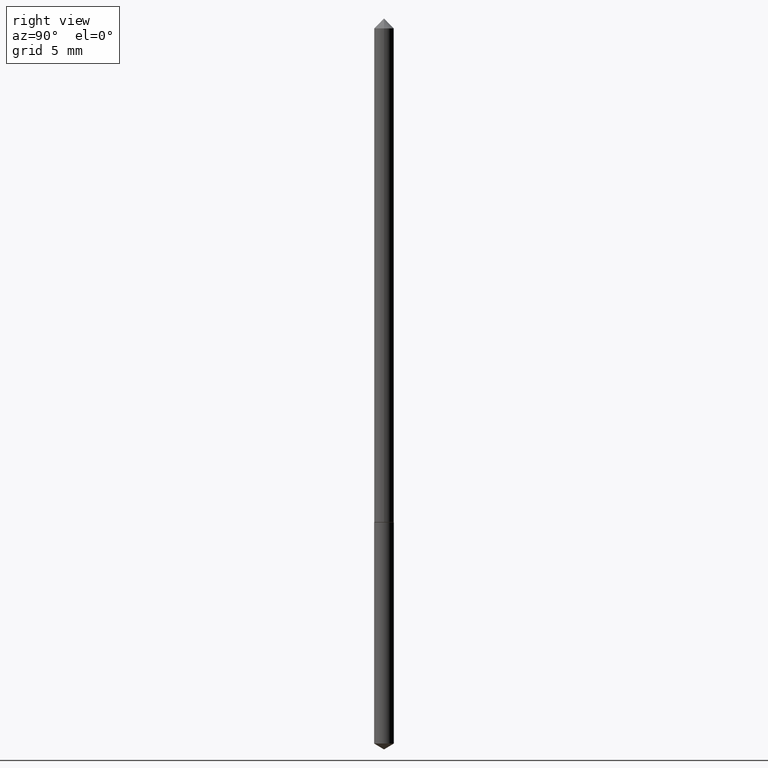
[diagram: clean part render]
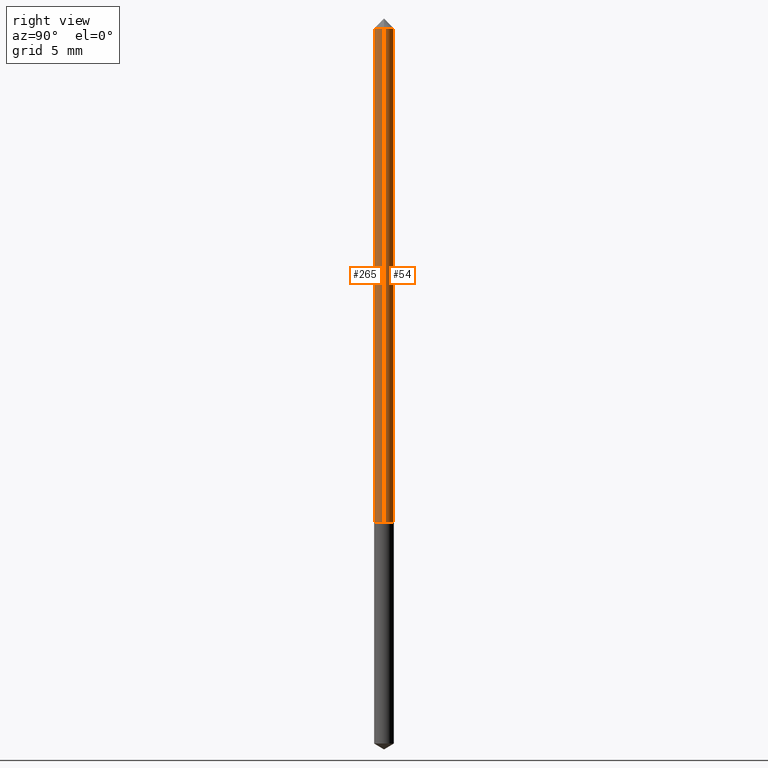
[diagram: same view with one multi-face feature highlighted, each face labeled with its STEP entity id]
A machine part, right view. The highlighted faces form ONE feature: a constant-radius fillet chain: 2 tangent blend faces with common blend radius 0.4001 mm. The faces share edges in the B-rep.
Their STEP definitions:
[1] entity #265 (Cylinder):
#1 = DIRECTION ( 'NONE',  ( -2.445468806185136597E-29, 3.491481338843145583E-15, 1.000000000000000000 ) ) ;
#10 = FACE_OUTER_BOUND ( 'NONE', #301, .T. ) ;
#15 = CARTESIAN_POINT ( 'NONE',  ( 0.01575000000000000358, -2.190904540124077205E-16, -0.03125000000000019429 ) ) ;
#46 = CARTESIAN_POINT ( 'NONE',  ( -0.01575000000000000358, -1.371358078891821821E-15, -0.03125000000000019429 ) ) ;
#61 = VERTEX_POINT ( 'NONE', #210 ) ;
#70 = DIRECTION ( 'NONE',  ( -2.445468806185136877E-29, 3.491481338843145188E-15, 1.000000000000000000 ) ) ;
#90 = VECTOR ( 'NONE', #70, 39.37007874015748143 ) ;
#100 = CARTESIAN_POINT ( 'NONE',  ( 0.01575000000000005215, -1.099816621735590636E-16, 7.679978421878623957E-31 ) ) ;
#109 = DIRECTION ( 'NONE',  ( -2.445468806185136597E-29, 3.491481338843145583E-15, 1.000000000000000000 ) ) ;
#127 = CARTESIAN_POINT ( 'NONE',  ( 2.001371670981915796E-29, -2.857428327709230637E-15, -0.8184000000000001274 ) ) ;
#135 = DIRECTION ( 'NONE',  ( -2.445468806185136597E-29, 3.491481338843145583E-15, 1.000000000000000000 ) ) ;
#137 = CARTESIAN_POINT ( 'NONE',  ( -0.01575000000000009726, -2.745517846827014167E-15, -0.8184000000000001274 ) ) ;
#138 = CIRCLE ( 'NONE', #212, 0.01575000000000000358 ) ;
#155 = LINE ( 'NONE', #100, #90 ) ;
#160 = CARTESIAN_POINT ( 'NONE',  ( 7.642090019328599159E-31, -1.091087918388489774E-16, -0.03125000000000019429 ) ) ;
#162 = CIRCLE ( 'NONE', #305, 0.01575000000000009726 ) ;
#170 = VERTEX_POINT ( 'NONE', #137 ) ;
#175 = VERTEX_POINT ( 'NONE', #15 ) ;
#176 = EDGE_CURVE ( 'NONE', #170, #250, #297, .T. ) ;
#183 = VECTOR ( 'NONE', #358, 39.37007874015748143 ) ;
#192 = ORIENTED_EDGE ( 'NONE', *, *, #342, .F. ) ;
#194 = ORIENTED_EDGE ( 'NONE', *, *, #275, .T. ) ;
#210 = CARTESIAN_POINT ( 'NONE',  ( 0.01575000000000009726, -2.967409989882790095E-15, -0.8184000000000001274 ) ) ;
#212 = AXIS2_PLACEMENT_3D ( 'NONE', #160, #135, #220 ) ;
#220 = DIRECTION ( 'NONE',  ( 1.000000000000000000, -6.982962677686267499E-15, 0.000000000000000000 ) ) ;
#233 = CARTESIAN_POINT ( 'NONE',  ( -0.01575000000000005215, 1.119104808822161498E-16, -7.747322767151501157E-31 ) ) ;
#250 = VERTEX_POINT ( 'NONE', #46 ) ;
#265 = ADVANCED_FACE ( 'NONE', ( #10 ), #344, .T. ) ;
#275 = EDGE_CURVE ( 'NONE', #170, #61, #162, .T. ) ;
#294 = DIRECTION ( 'NONE',  ( 1.000000000000000000, -6.982962677686266711E-15, 4.876176775795935793E-29 ) ) ;
#297 = LINE ( 'NONE', #233, #183 ) ;
#298 = ORIENTED_EDGE ( 'NONE', *, *, #176, .F. ) ;
#301 = EDGE_LOOP ( 'NONE', ( #298, #194, #360, #192 ) ) ;
#305 = AXIS2_PLACEMENT_3D ( 'NONE', #127, #1, #329 ) ;
#312 = CARTESIAN_POINT ( 'NONE',  ( 0.000000000000000000, 0.000000000000000000, 0.000000000000000000 ) ) ;
#326 = AXIS2_PLACEMENT_3D ( 'NONE', #312, #109, #294 ) ;
#329 = DIRECTION ( 'NONE',  ( 1.000000000000000000, -6.982962677686273810E-15, 0.000000000000000000 ) ) ;
#337 = EDGE_CURVE ( 'NONE', #61, #175, #155, .T. ) ;
#342 = EDGE_CURVE ( 'NONE', #250, #175, #138, .T. ) ;
#344 = CYLINDRICAL_SURFACE ( 'NONE', #326, 0.01575000000000005215 ) ;
#358 = DIRECTION ( 'NONE',  ( -2.445468806185136877E-29, 3.491481338843145188E-15, 1.000000000000000000 ) ) ;
#360 = ORIENTED_EDGE ( 'NONE', *, *, #337, .T. ) ;
[2] entity #54 (Cylinder):
#15 = CARTESIAN_POINT ( 'NONE',  ( 0.01575000000000000358, -2.190904540124077205E-16, -0.03125000000000019429 ) ) ;
#23 = ORIENTED_EDGE ( 'NONE', *, *, #113, .T. ) ;
#27 = CIRCLE ( 'NONE', #288, 0.01575000000000000358 ) ;
#35 = DIRECTION ( 'NONE',  ( 1.000000000000000000, -6.982962677686267499E-15, 0.000000000000000000 ) ) ;
#46 = CARTESIAN_POINT ( 'NONE',  ( -0.01575000000000000358, -1.371358078891821821E-15, -0.03125000000000019429 ) ) ;
#54 = ADVANCED_FACE ( 'NONE', ( #257 ), #361, .T. ) ;
#61 = VERTEX_POINT ( 'NONE', #210 ) ;
#70 = DIRECTION ( 'NONE',  ( -2.445468806185136877E-29, 3.491481338843145188E-15, 1.000000000000000000 ) ) ;
#87 = DIRECTION ( 'NONE',  ( -2.445468806185136597E-29, 3.491481338843145583E-15, 1.000000000000000000 ) ) ;
#89 = CARTESIAN_POINT ( 'NONE',  ( 0.000000000000000000, 0.000000000000000000, 0.000000000000000000 ) ) ;
#90 = VECTOR ( 'NONE', #70, 39.37007874015748143 ) ;
#100 = CARTESIAN_POINT ( 'NONE',  ( 0.01575000000000005215, -1.099816621735590636E-16, 7.679978421878623957E-31 ) ) ;
#102 = CARTESIAN_POINT ( 'NONE',  ( 7.642090019328599159E-31, -1.091087918388489774E-16, -0.03125000000000019429 ) ) ;
#113 = EDGE_CURVE ( 'NONE', #61, #170, #283, .T. ) ;
#120 = DIRECTION ( 'NONE',  ( 1.000000000000000000, -6.982962677686266711E-15, 4.876176775795935793E-29 ) ) ;
#137 = CARTESIAN_POINT ( 'NONE',  ( -0.01575000000000009726, -2.745517846827014167E-15, -0.8184000000000001274 ) ) ;
#143 = ORIENTED_EDGE ( 'NONE', *, *, #337, .F. ) ;
#155 = LINE ( 'NONE', #100, #90 ) ;
#170 = VERTEX_POINT ( 'NONE', #137 ) ;
#175 = VERTEX_POINT ( 'NONE', #15 ) ;
#176 = EDGE_CURVE ( 'NONE', #170, #250, #297, .T. ) ;
#177 = DIRECTION ( 'NONE',  ( -2.445468806185136597E-29, 3.491481338843145583E-15, 1.000000000000000000 ) ) ;
#178 = AXIS2_PLACEMENT_3D ( 'NONE', #302, #87, #317 ) ;
#183 = VECTOR ( 'NONE', #358, 39.37007874015748143 ) ;
#188 = DIRECTION ( 'NONE',  ( -2.445468806185136597E-29, 3.491481338843145583E-15, 1.000000000000000000 ) ) ;
#195 = AXIS2_PLACEMENT_3D ( 'NONE', #89, #177, #120 ) ;
#210 = CARTESIAN_POINT ( 'NONE',  ( 0.01575000000000009726, -2.967409989882790095E-15, -0.8184000000000001274 ) ) ;
#233 = CARTESIAN_POINT ( 'NONE',  ( -0.01575000000000005215, 1.119104808822161498E-16, -7.747322767151501157E-31 ) ) ;
#243 = ORIENTED_EDGE ( 'NONE', *, *, #176, .T. ) ;
#250 = VERTEX_POINT ( 'NONE', #46 ) ;
#257 = FACE_OUTER_BOUND ( 'NONE', #318, .T. ) ;
#283 = CIRCLE ( 'NONE', #178, 0.01575000000000009726 ) ;
#288 = AXIS2_PLACEMENT_3D ( 'NONE', #102, #188, #35 ) ;
#297 = LINE ( 'NONE', #233, #183 ) ;
#302 = CARTESIAN_POINT ( 'NONE',  ( 2.001371670981915796E-29, -2.857428327709230637E-15, -0.8184000000000001274 ) ) ;
#317 = DIRECTION ( 'NONE',  ( 1.000000000000000000, -6.982962677686273810E-15, 0.000000000000000000 ) ) ;
#318 = EDGE_LOOP ( 'NONE', ( #23, #243, #324, #143 ) ) ;
#324 = ORIENTED_EDGE ( 'NONE', *, *, #340, .F. ) ;
#337 = EDGE_CURVE ( 'NONE', #61, #175, #155, .T. ) ;
#340 = EDGE_CURVE ( 'NONE', #175, #250, #27, .T. ) ;
#358 = DIRECTION ( 'NONE',  ( -2.445468806185136877E-29, 3.491481338843145188E-15, 1.000000000000000000 ) ) ;
#361 = CYLINDRICAL_SURFACE ( 'NONE', #195, 0.01575000000000005215 ) ;